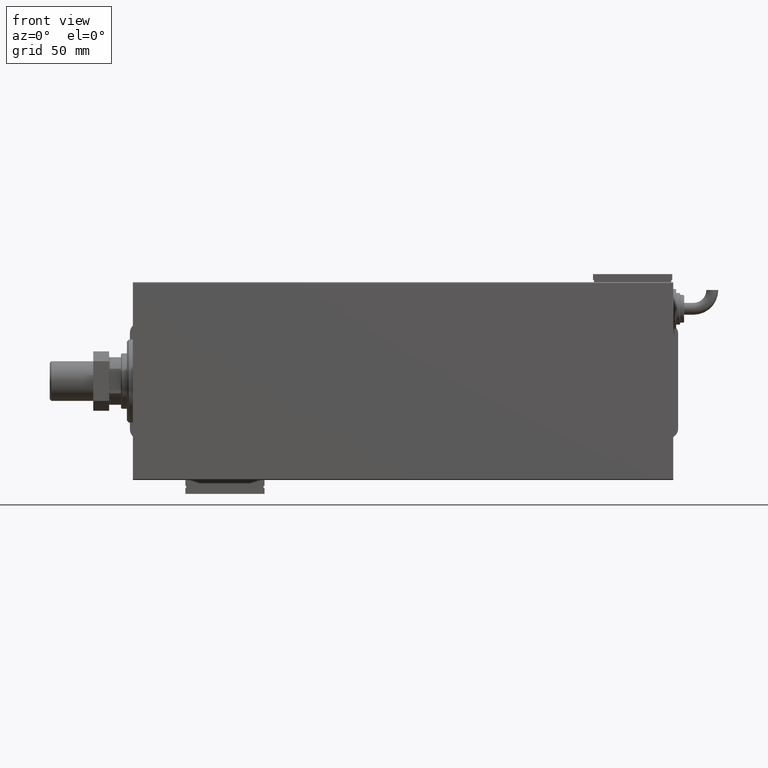
[diagram: clean part render]
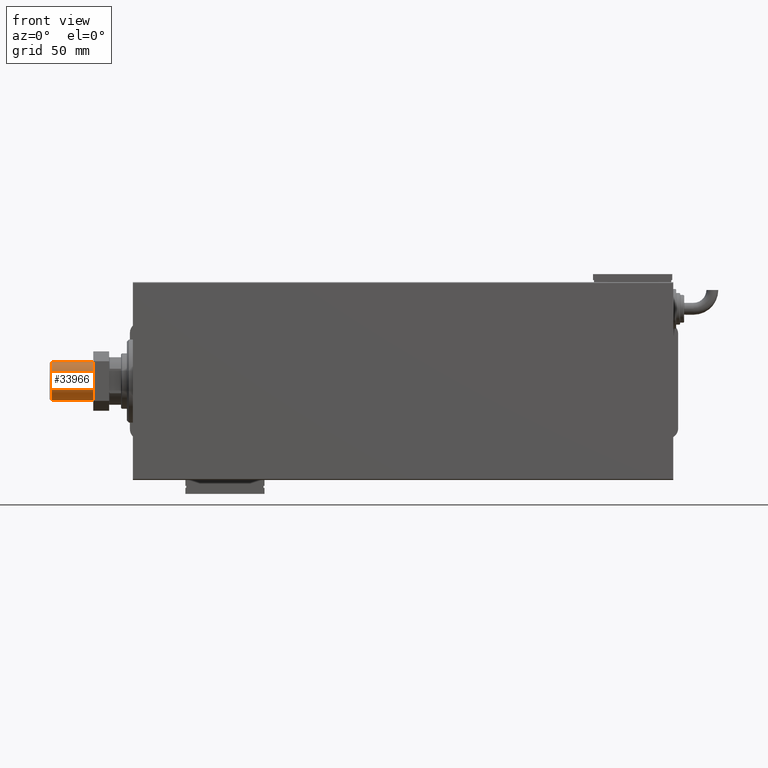
[diagram: same view with one face highlighted and labeled with its STEP entity id]
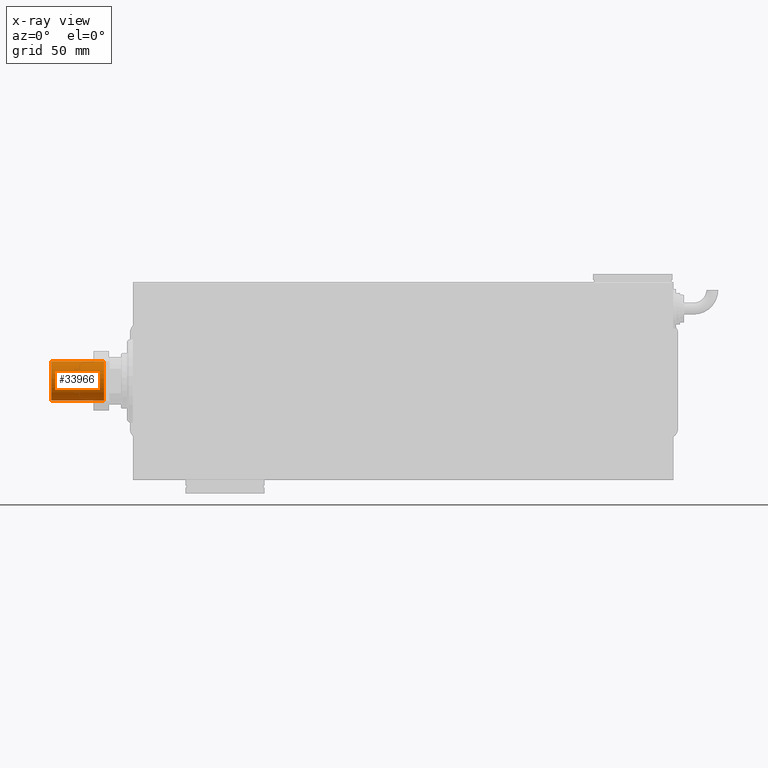
[diagram: x-ray of the same camera — body ghosted, the highlighted face saturated]
A machine part, front view. The second image highlights one B-rep face of the part: STEP entity #33966.
The next image is the same camera in x-ray: the body ghosted, the highlighted face saturated — about 0% of this face is hidden behind the body in this view.
In plain terms, the highlighted cylindrical surface (edge-blend (fillet) strip) has radius 10 mm, axis along (-1, -0, 0).
Its self-contained STEP definition (entity closure, byte-faithful):
#4678 = AXIS2_PLACEMENT_3D ( 'NONE', #44167, #22051, #35565 ) ;
#6904 = CARTESIAN_POINT ( 'NONE',  ( 10.00000000000000000, 1.224646799147353256E-15, 0.7999999999999986011 ) ) ;
#7318 = CARTESIAN_POINT ( 'NONE',  ( -10.00000000000000000, 0.000000000000000000, 27.50000000000000000 ) ) ;
#14408 = AXIS2_PLACEMENT_3D ( 'NONE', #45837, #26522, #54439 ) ;
#14920 = ORIENTED_EDGE ( 'NONE', *, *, #26951, .F. ) ;
#15275 = DIRECTION ( 'NONE',  ( -0.000000000000000000, -0.000000000000000000, -1.000000000000000000 ) ) ;
#15624 = DIRECTION ( 'NONE',  ( -0.000000000000000000, -0.000000000000000000, -1.000000000000000000 ) ) ;
#17324 = ORIENTED_EDGE ( 'NONE', *, *, #45825, .F. ) ;
#19911 = CYLINDRICAL_SURFACE ( 'NONE', #38101, 10.00000000000000000 ) ;
#20476 = CARTESIAN_POINT ( 'NONE',  ( -10.00000000000000000, 0.000000000000000000, 0.7999999999999986011 ) ) ;
#22051 = DIRECTION ( 'NONE',  ( -0.000000000000000000, -0.000000000000000000, 1.000000000000000000 ) ) ;
#26522 = DIRECTION ( 'NONE',  ( 0.000000000000000000, 0.000000000000000000, 1.000000000000000000 ) ) ;
#26951 = EDGE_CURVE ( 'NONE', #37272, #58840, #36957, .T. ) ;
#30034 = EDGE_LOOP ( 'NONE', ( #17324, #14920, #40647, #54799 ) ) ;
#31693 = VECTOR ( 'NONE', #15624, 1000.000000000000000 ) ;
#33966 = ADVANCED_FACE ( 'NONE', ( #43831 ), #19911, .T. ) ;
#34925 = VECTOR ( 'NONE', #49084, 1000.000000000000000 ) ;
#35565 = DIRECTION ( 'NONE',  ( 1.000000000000000000, 0.000000000000000000, 0.000000000000000000 ) ) ;
#36957 = CIRCLE ( 'NONE', #14408, 10.00000000000000000 ) ;
#37272 = VERTEX_POINT ( 'NONE', #55662 ) ;
#38101 = AXIS2_PLACEMENT_3D ( 'NONE', #57356, #15275, #52754 ) ;
#39879 = LINE ( 'NONE', #57705, #31693 ) ;
#40647 = ORIENTED_EDGE ( 'NONE', *, *, #51476, .T. ) ;
#40832 = VERTEX_POINT ( 'NONE', #6904 ) ;
#43831 = FACE_OUTER_BOUND ( 'NONE', #30034, .T. ) ;
#44167 = CARTESIAN_POINT ( 'NONE',  ( 0.000000000000000000, 0.000000000000000000, 0.7999999999999986011 ) ) ;
#44770 = LINE ( 'NONE', #7318, #34925 ) ;
#45825 = EDGE_CURVE ( 'NONE', #58840, #40832, #39879, .T. ) ;
#45837 = CARTESIAN_POINT ( 'NONE',  ( 0.000000000000000000, 0.000000000000000000, 27.50000000000000000 ) ) ;
#46287 = CARTESIAN_POINT ( 'NONE',  ( 10.00000000000000000, 1.224646799147353256E-15, 27.50000000000000000 ) ) ;
#47822 = CIRCLE ( 'NONE', #4678, 10.00000000000000000 ) ;
#49084 = DIRECTION ( 'NONE',  ( -0.000000000000000000, -0.000000000000000000, -1.000000000000000000 ) ) ;
#51476 = EDGE_CURVE ( 'NONE', #37272, #51701, #44770, .T. ) ;
#51701 = VERTEX_POINT ( 'NONE', #20476 ) ;
#52754 = DIRECTION ( 'NONE',  ( -1.000000000000000000, 0.000000000000000000, 0.000000000000000000 ) ) ;
#54439 = DIRECTION ( 'NONE',  ( 1.000000000000000000, 0.000000000000000000, 0.000000000000000000 ) ) ;
#54799 = ORIENTED_EDGE ( 'NONE', *, *, #59624, .T. ) ;
#55662 = CARTESIAN_POINT ( 'NONE',  ( -10.00000000000000000, 0.000000000000000000, 27.50000000000000000 ) ) ;
#57356 = CARTESIAN_POINT ( 'NONE',  ( 0.000000000000000000, 0.000000000000000000, 27.50000000000000000 ) ) ;
#57705 = CARTESIAN_POINT ( 'NONE',  ( 10.00000000000000000, 1.224646799147353256E-15, 27.50000000000000000 ) ) ;
#58840 = VERTEX_POINT ( 'NONE', #46287 ) ;
#59624 = EDGE_CURVE ( 'NONE', #51701, #40832, #47822, .T. ) ;